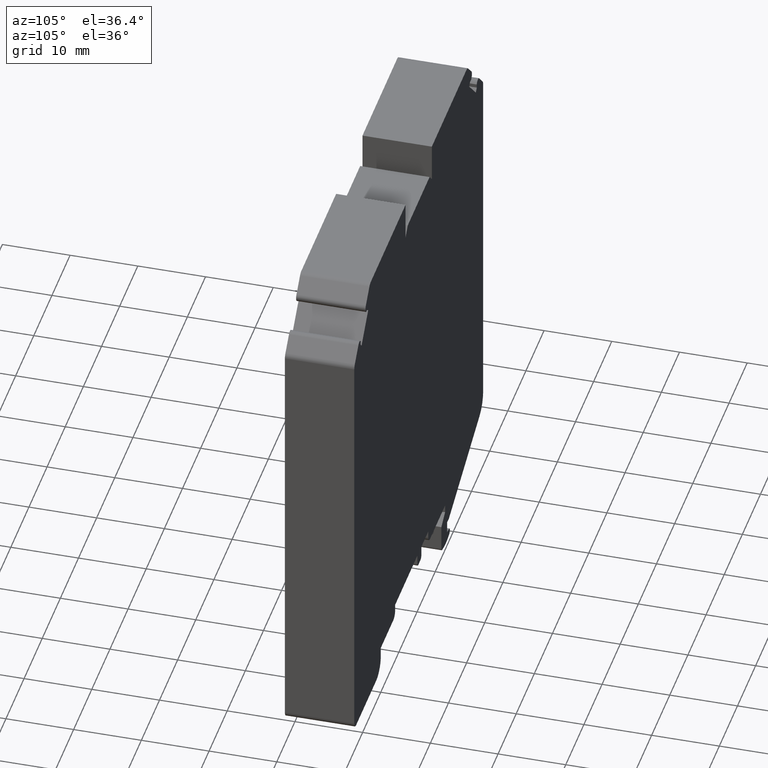
[diagram: clean part render]
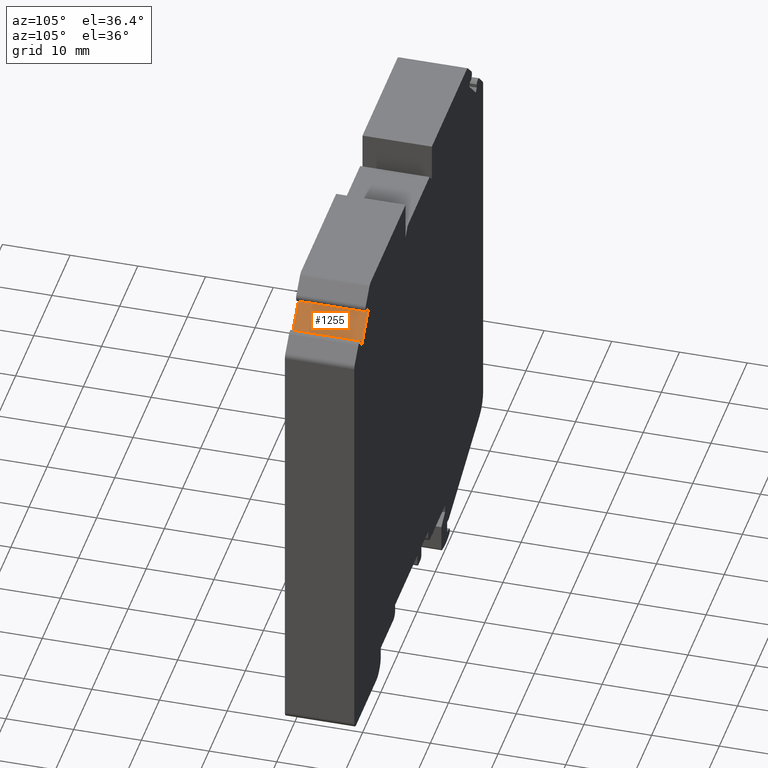
[diagram: same view with one face highlighted and labeled with its STEP entity id]
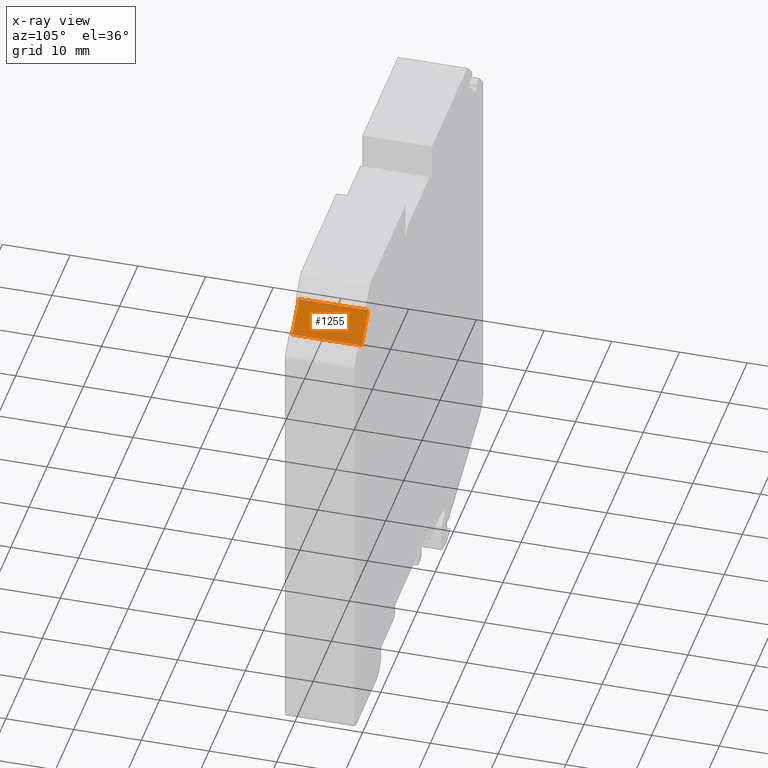
[diagram: x-ray of the same camera — body ghosted, the highlighted face saturated]
A machine part, auxiliary view. The second image highlights one B-rep face of the part: STEP entity #1255.
The next image is the same camera in x-ray: the body ghosted, the highlighted face saturated — about 0% of this face is hidden behind the body in this view.
In plain terms, the highlighted planar face has unit normal (0.7071, 0, 0.7071).
Its self-contained STEP definition (entity closure, byte-faithful):
#94=ORIENTED_EDGE('',*,*,#468,.F.);
#95=ORIENTED_EDGE('',*,*,#467,.F.);
#96=ORIENTED_EDGE('',*,*,#469,.T.);
#97=ORIENTED_EDGE('',*,*,#470,.T.);
#467=EDGE_CURVE('',#652,#651,#780,.T.);
#468=EDGE_CURVE('',#651,#653,#781,.T.);
#469=EDGE_CURVE('',#652,#654,#782,.T.);
#470=EDGE_CURVE('',#654,#653,#783,.T.);
#651=VERTEX_POINT('',#1816);
#652=VERTEX_POINT('',#1818);
#653=VERTEX_POINT('',#1822);
#654=VERTEX_POINT('',#1824);
#780=LINE('',#1819,#933);
#781=LINE('',#1821,#934);
#782=LINE('',#1823,#935);
#783=LINE('',#1825,#936);
#933=VECTOR('',#1458,1000.);
#934=VECTOR('',#1461,1000.);
#935=VECTOR('',#1462,1000.);
#936=VECTOR('',#1463,1000.);
#1078=EDGE_LOOP('',(#94,#95,#96,#97));
#1143=FACE_BOUND('',#1078,.T.);
#1207=PLANE('',#1335);
#1255=ADVANCED_FACE('',(#1143),#1207,.T.);
#1335=AXIS2_PLACEMENT_3D('',#1820,#1459,#1460);
#1458=DIRECTION('',(0.,-1.,0.));
#1459=DIRECTION('',(0.70710678118651,0.,0.707106781186585));
#1460=DIRECTION('',(0.707106781186585,0.,-0.70710678118651));
#1461=DIRECTION('',(-0.707106781186585,0.,0.70710678118651));
#1462=DIRECTION('',(-0.707106781186585,0.,0.70710678118651));
#1463=DIRECTION('',(0.,-1.,0.));
#1816=CARTESIAN_POINT('',(31.4935574446817,0.,30.2153484396556));
#1818=CARTESIAN_POINT('',(31.4935574446817,10.25,30.2153484396556));
#1819=CARTESIAN_POINT('',(31.4935574446817,10.25,30.2153484396556));
#1820=CARTESIAN_POINT('',(27.8166021825115,10.25,33.8923037018255));
#1821=CARTESIAN_POINT('',(27.8166021825115,0.,33.8923037018255));
#1822=CARTESIAN_POINT('',(27.8166021825115,0.,33.8923037018255));
#1823=CARTESIAN_POINT('',(27.8166021825115,10.25,33.8923037018255));
#1824=CARTESIAN_POINT('',(27.8166021825115,10.25,33.8923037018255));
#1825=CARTESIAN_POINT('',(27.8166021825115,10.25,33.8923037018255));